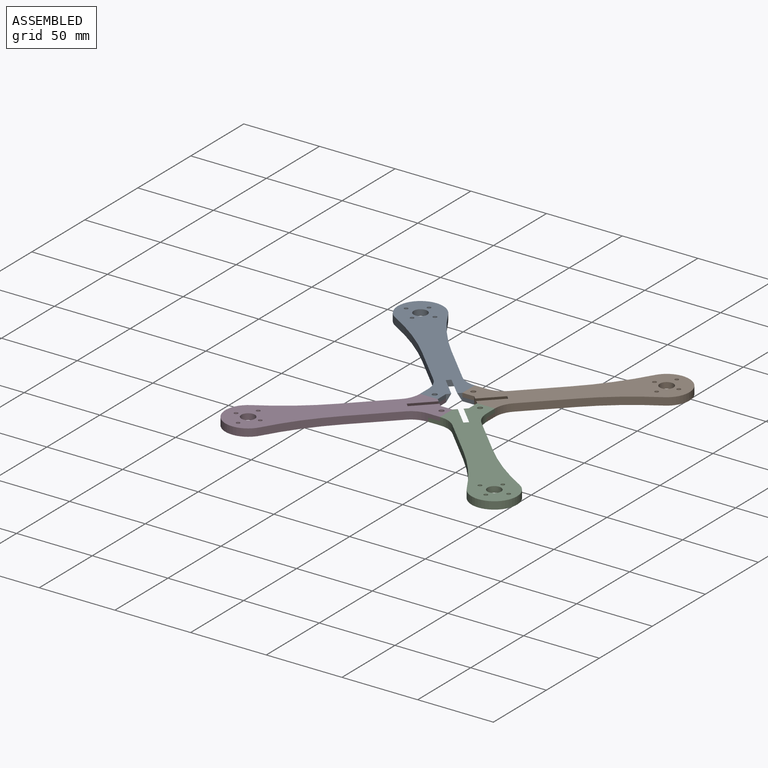
[diagram: assembled view]
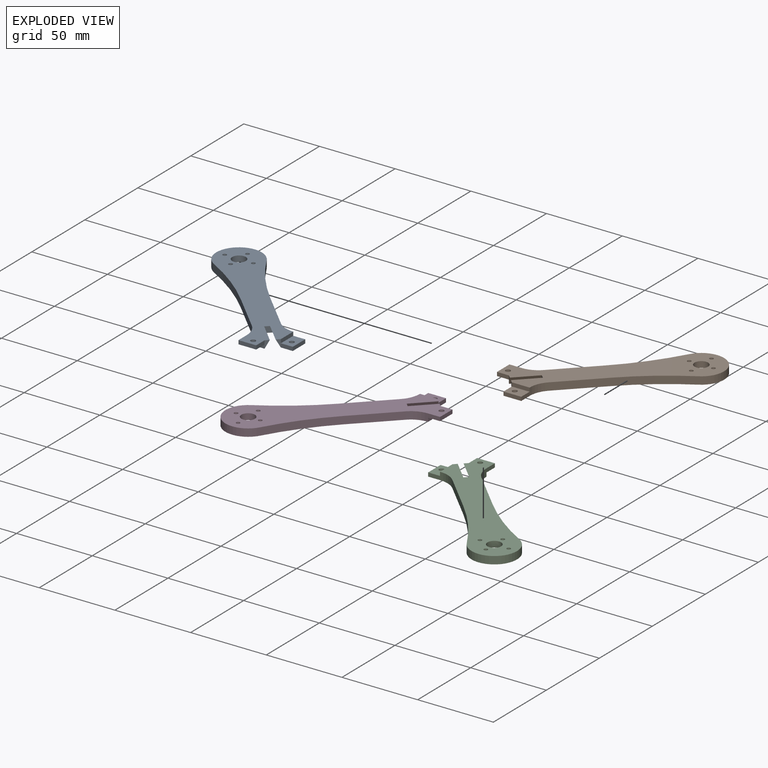
[diagram: exploded view]
GUIDED TOUR — MATED ASSEMBLY (Onshape document 2eba3f45fb6d1a88e2d78f5d, AutoMate assembly 2eba3f45fb6d1a88e2d78f5d_809696ebd83665a8b5884bc8_9922c67665e5621c019cb898_default)

This assembly has 4 components, labeled P0..P3 below (a component is one placed occurrence of a part; the same part can appear more than once), held together by 3 mates. A mate is a constraint between two components; its type names the relative motion it leaves free:
  FASTENED — locks the two components together rigidly (no relative motion).
Axis/direction vectors are unit vectors and 'through' points are millimeter coordinates, both in the assembly's world frame.

MATES
  1. FASTENED "Fastened 1": P3 <-> P2, direction (0.000, 0.000, -1.000) through (-0.24, -12.91, 0.00) mm
  2. FASTENED "Fastened 3": P0 <-> P1, direction (0.000, 0.000, 1.000) through (-0.24, 17.09, 0.00) mm
  3. FASTENED "Fastened 2": P1 <-> P2, direction (0.000, 0.000, 1.000) through (14.76, 2.09, 0.00) mm

ASSEMBLY ORDER
  1. P3 — the base component [order verified]
  2. P0 [order verified]
  3. P1 [order verified]
  4. P2 [order verified]
(P2 verified with a relaxed clearance tolerance: the source model stores slight part interference there.)
Order-tag legend:
  [order verified] — this step's position reverses a verified removal order: the component was checked to insert without passing through the ones already placed.

Of the 4 components, 4 carry the full construction recipe — the FeatureScript program that regenerates the part's solid from scratch; the rest are supplied as boundary geometry only.
Each toured component is shown spotlighted twice — in the assembled view, then in the exploded view, where a leader line traces a displaced component back to its assembled socket (saturated green if recipe-attached, orange if geometry-only; every other component desaturated gray) — followed by its recipe or geometry summary and the mates that hold it.
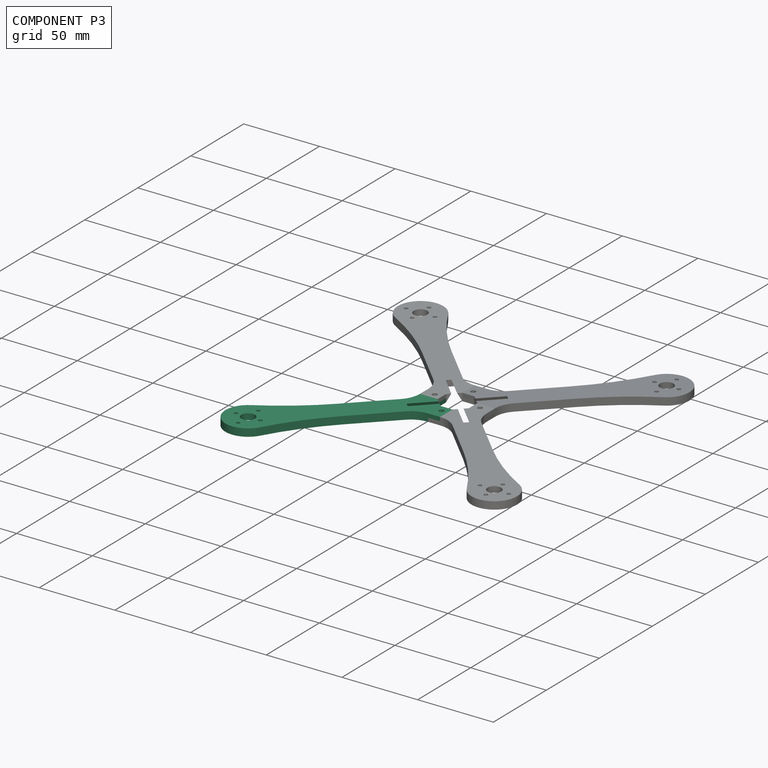
[diagram: component P3 — assembled]
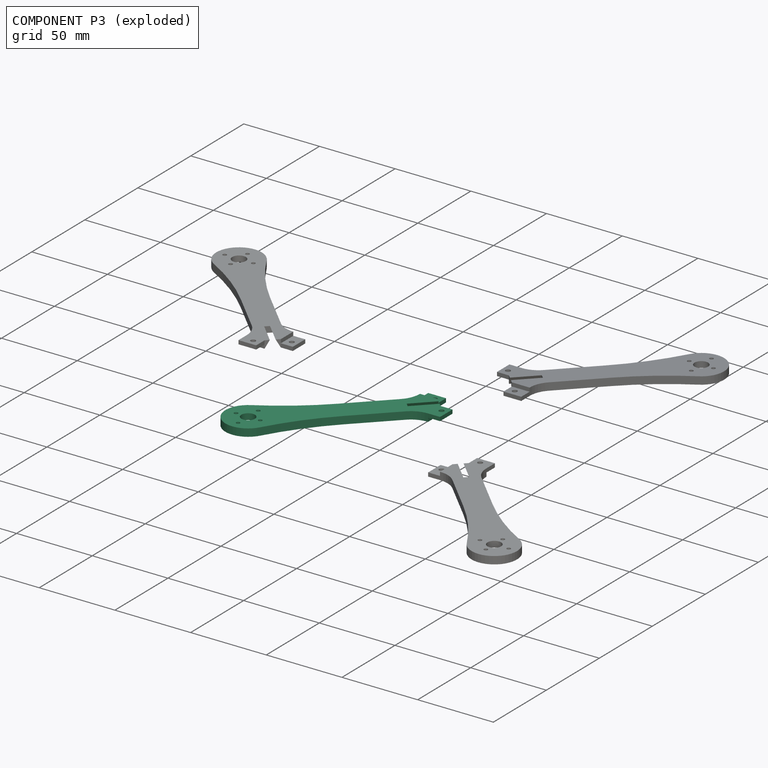
[diagram: component P3 — exploded]
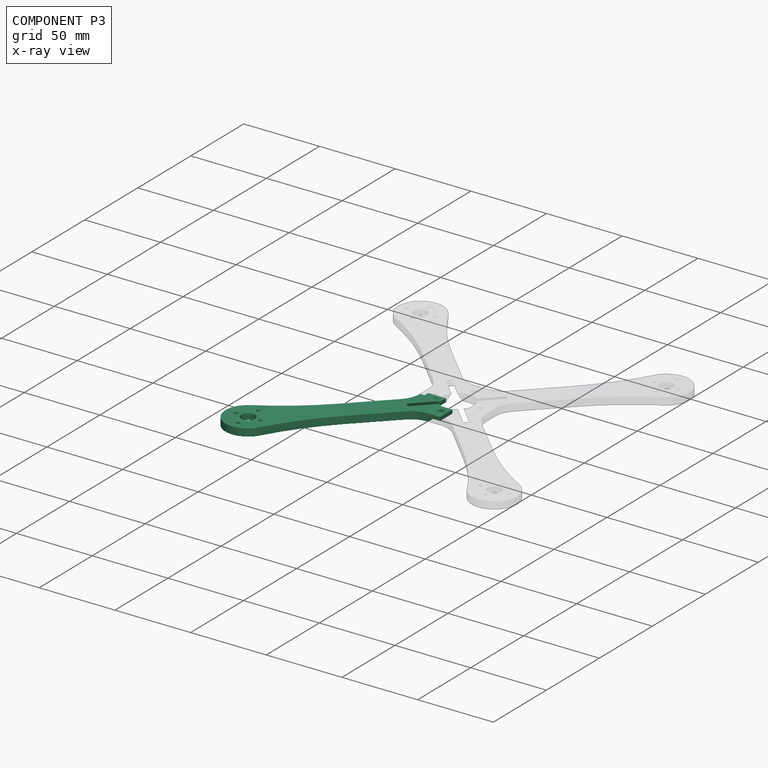
[diagram: component P3 — x-ray view]
COMPONENT P3 — same part as P0 (CADFS 00136629); its construction recipe is shown at P0.
Held by: FASTENED mate "Fastened 1" to P2.
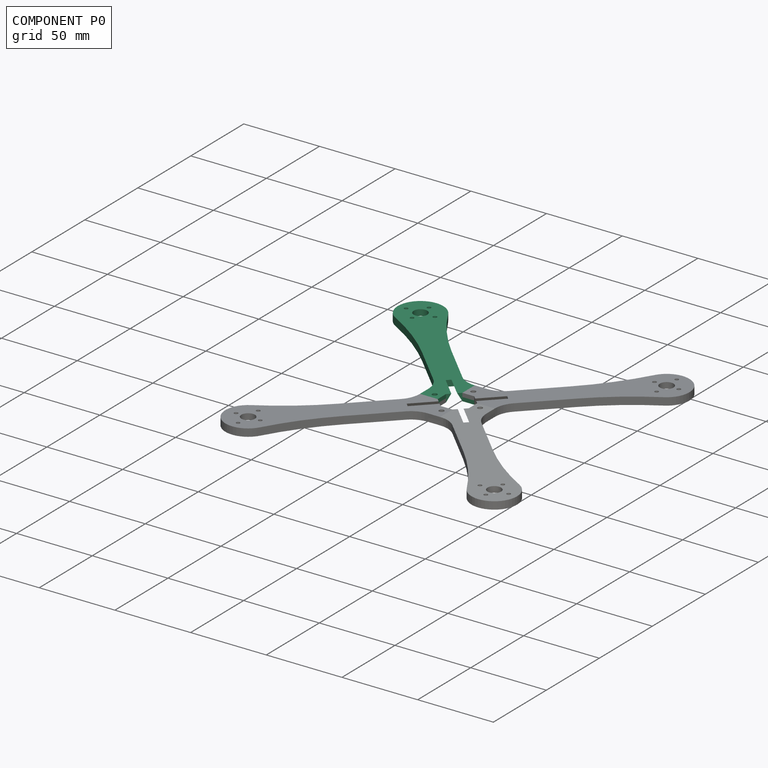
[diagram: component P0 — assembled]
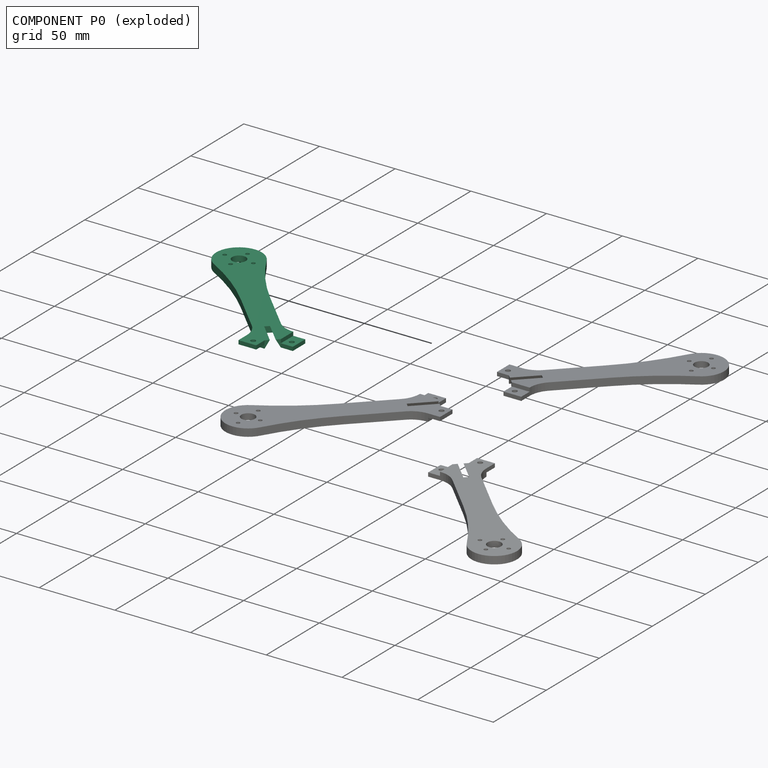
[diagram: component P0 — exploded]
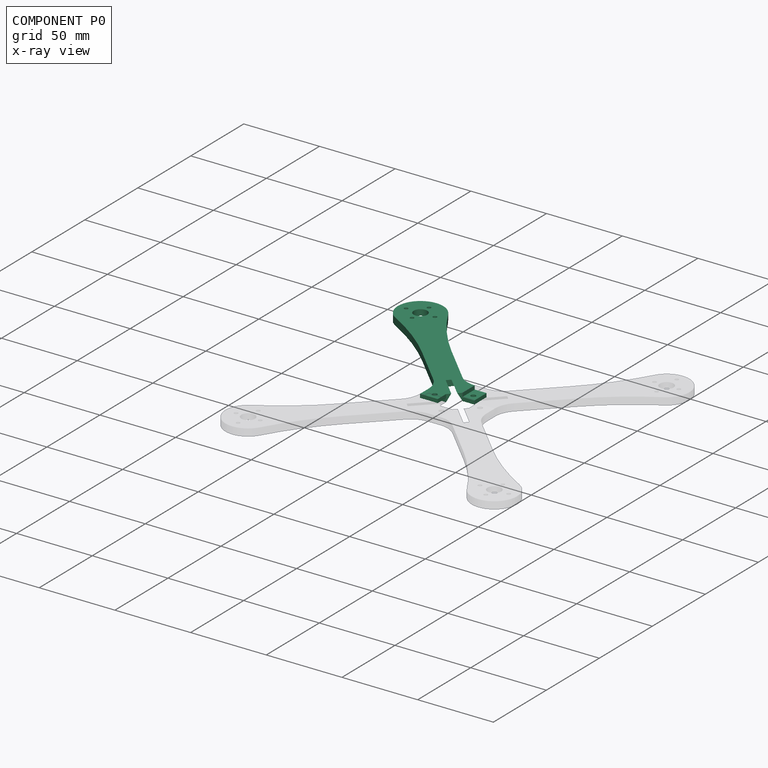
[diagram: component P0 — x-ray view]
COMPONENT P0 — recipe-attached (CADFS 00136629, mesh-verified: the recipe's output STEP matches this component's geometry to below the mesh-comparison resolution (tessellation chordal tolerance ~0.213 mm)).
Held by: FASTENED mate "Fastened 3" to P1.
Construction recipe (FeatureScript — the CAD program that rebuilds this solid; sketch coordinates are in the units given by the * unit suffixes, e.g. mm):

FeatureScript 1511;
import(path : "onshape/std/geometry.fs", version : "1511.0");
import(path : "onshape/std/common.fs", version : "1511.0");
const mm = millimeter;
const VERTEX = EntityType.VERTEX;
const EDGE = EntityType.EDGE;
const FACE = EntityType.FACE;
const BODY = EntityType.BODY;
function v(x, y){return vector(x, y);}
function OD(order){return orderDisambiguation(order);}
function OSD(set){return originalSetDisambiguation(set);}
function TD(topology){return topologyDisambiguation(topology);}
function TDD(query){return trueDependencyDisambiguation(query);}
function sQuery(a, b, c) {return sketchEntityQuery(a, b, c);}

annotation { "Feature Type Name" : "Feature", "Feature Type Description" : "" }
export const myFeature = defineFeature(function(context is Context, id is Id, definition is map)
    precondition{}
    {
        {
            var Q0;
            Q0=qCreatedBy(makeId("Top.planeOp"),FACE);
            var sketch = newSketch(context, id + "F0", { "sketchPlane" : qUnion([Q0])});
            skLineSegment(sketch, "E0.left", {"start": v(-22, 3.93) * mm, "end": v(-22, -4.06) * mm});
            skLineSegment(sketch, "E1.top", {"start": v(-18, -18) * mm, "end": v(3.93, -18) * mm, "construction": true});
            skLineSegment(sketch, "E1.left", {"start": v(-18, 3.93) * mm, "end": v(-18, -18) * mm, "construction": true});
            skCircle(sketch, "E2.MirrorC", {"center": v(-15, -15) * mm, "radius": 1.6 * mm, "construction": true});
            skCircle(sketch, "E3.MirrorC", {"center": v(-89.32, -81.32) * mm, "radius": 1.25 * mm});
            skCircle(sketch, "E4.MirrorC", {"center": v(-81.32, -71.82) * mm, "radius": 1.25 * mm});
            skCircle(sketch, "E5.MirrorC", {"center": v(-81.32, -90.82) * mm, "radius": 1.25 * mm});
            skCircle(sketch, "E6.MirrorC", {"center": v(-73.32, -81.32) * mm, "radius": 1.25 * mm});
            skCircle(sketch, "E7.MirrorC", {"center": v(-81.32, -81.32) * mm, "radius": 4.5 * mm});
            skCircle(sketch, "E8.MirrorC", {"center": v(-81.32, -81.32) * mm, "radius": 13.85 * mm, "construction": true});
            skArc(sketch, "E9.MirrorC", {"start": v(-66.69, -78) * mm, "mid": v(-91.92, -91.92) * mm, "end": v(-78, -66.69) * mm});
            skPoint(sketch, "E10", {"position": v(-22, 0) * mm});
            skPoint(sketch, "E11", {"position": v(0, -22) * mm});
            skLineSegment(sketch, "E12", {"start": v(-22, 0) * mm, "end": v(0, 0) * mm, "construction": true});
            skLineSegment(sketch, "E13", {"start": v(0, -22) * mm, "end": v(0, 0) * mm, "construction": true});
            skLineSegment(sketch, "E14.1", {"start": v(0.6, -5.56) * mm, "end": v(-0.6, -5.56) * mm, "construction": true});
            skLineSegment(sketch, "E15.trimOffspring", {"start": v(-3.93, -10.27) * mm, "end": v(-3.93, -22) * mm});
            skLineSegment(sketch, "E16.trimOffspring", {"start": v(-10.27, -3.93) * mm, "end": v(-22, -3.93) * mm});
            skCircle(sketch, "E17", {"center": v(-15, 0) * mm, "radius": 1.6 * mm});
            skCircle(sketch, "E18", {"center": v(0, -15) * mm, "radius": 1.6 * mm});
            skLineSegment(sketch, "E19", {"start": v(0, 0) * mm, "end": v(-70.71, -70.71) * mm, "construction": true});
            skLineSegment(sketch, "E20", {"start": v(-3.93, -8.88) * mm, "end": v(-0.6, -5.56) * mm, "construction": true});
            skLineSegment(sketch, "E21.trimOffspring", {"start": v(-5.56, -0.6) * mm, "end": v(-8.88, -3.93) * mm, "construction": true});
            skLineSegment(sketch, "E22", {"start": v(-26.69, -15.37) * mm, "end": v(-78, -66.69) * mm});
            skLineSegment(sketch, "E23", {"start": v(-66.69, -78) * mm, "end": v(-15.37, -26.69) * mm});
            skLineSegment(sketch, "E24", {"start": v(-23.41, -15.64) * mm, "end": v(-15.64, -23.41) * mm});
            skLineSegment(sketch, "E25.0", {"start": v(-68.35, -77.55) * mm, "end": v(-15.64, -24.83) * mm});
            skArc(sketch, "E25.1", {"start": v(-68.35, -77.55) * mm, "mid": v(-90.86, -90.86) * mm, "end": v(-77.55, -68.35) * mm});
            skLineSegment(sketch, "E25.2", {"start": v(-24.83, -15.64) * mm, "end": v(-77.55, -68.35) * mm});
            skLineSegment(sketch, "E26.trimOffspring", {"start": v(-4.06, -22) * mm, "end": v(3.93, -22) * mm});
            skPoint(sketch, "E27.visualSharp", {"position": v(-24.12, -14.93) * mm});
            skArc(sketch, "E27.filletArc", {"start": v(-23.41, -15.64) * mm, "mid": v(-24.12, -15.34) * mm, "end": v(-24.83, -15.64) * mm});
            skPoint(sketch, "E28.visualSharp", {"position": v(-14.93, -24.12) * mm});
            skArc(sketch, "E28.filletArc", {"start": v(-15.64, -24.83) * mm, "mid": v(-15.34, -24.12) * mm, "end": v(-15.64, -23.41) * mm});
            skPoint(sketch, "E29.visualSharp", {"position": v(-10.69, -22) * mm});
            skArc(sketch, "E29.filletArc", {"start": v(-4.06, -22) * mm, "mid": v(-10.18, -23.22) * mm, "end": v(-15.37, -26.69) * mm});
            skPoint(sketch, "E30.visualSharp", {"position": v(-22, -10.69) * mm});
            skArc(sketch, "E30.filletArc", {"start": v(-26.69, -15.37) * mm, "mid": v(-23.22, -10.18) * mm, "end": v(-22, -4.06) * mm});
            skLineSegment(sketch, "E31", {"start": v(-8.88, -3.93) * mm, "end": v(-3.93, -8.88) * mm, "construction": true});
            skLineSegment(sketch, "E32", {"start": v(-8.23, -5.97) * mm, "end": v(-20.66, -18.4) * mm});
            skLineSegment(sketch, "E33", {"start": v(-5.97, -8.23) * mm, "end": v(-18.4, -20.66) * mm});
            skLineSegment(sketch, "E34", {"start": v(0.6, -5.56) * mm, "end": v(3.93, -8.88) * mm, "construction": true});
            skLineSegment(sketch, "E35", {"start": v(-5.56, 0.6) * mm, "end": v(-8.88, 3.93) * mm, "construction": true});
            skLineSegment(sketch, "E36", {"start": v(-5.56, 0.6) * mm, "end": v(-5.56, -0.6) * mm, "construction": true});
            skLineSegment(sketch, "E37", {"start": v(-3.93, -8.88) * mm, "end": v(3.93, -8.88) * mm, "construction": true});
            skLineSegment(sketch, "E38", {"start": v(3.93, -22) * mm, "end": v(3.93, -10.27) * mm});
            skLineSegment(sketch, "E39", {"start": v(-8.88, -3.93) * mm, "end": v(-8.88, 3.93) * mm, "construction": true});
            skLineSegment(sketch, "E40", {"start": v(-22, 3.93) * mm, "end": v(-10.27, 3.93) * mm});
            skLineSegment(sketch, "E41", {"start": v(-8.88, 3.93) * mm, "end": v(-8.44, 3.93) * mm, "construction": true});
            skLineSegment(sketch, "E42", {"start": v(-8.44, 3.93) * mm, "end": v(-8.44, 2.53) * mm, "construction": true});
            skLineSegment(sketch, "E43", {"start": v(-8.44, 2.53) * mm, "end": v(-8.88, 2.53) * mm, "construction": true});
            skLineSegment(sketch, "E44", {"start": v(-8.88, 3.93) * mm, "end": v(-8.88, 4.28) * mm, "construction": true});
            skLineSegment(sketch, "E45", {"start": v(-8.88, 4.28) * mm, "end": v(-10.27, 4.28) * mm, "construction": true});
            skLineSegment(sketch, "E46", {"start": v(-10.27, 4.28) * mm, "end": v(-10.27, 3.93) * mm, "construction": true});
            skLineSegment(sketch, "E47", {"start": v(-8.88, 2.53) * mm, "end": v(-10.27, 3.93) * mm, "construction": true});
            skLineSegment(sketch, "E48", {"start": v(-10.27, 3.93) * mm, "end": v(-10.27, -3.93) * mm});
            skLineSegment(sketch, "E49", {"start": v(-10.27, -3.93) * mm, "end": v(-3.93, -10.27) * mm});
            skLineSegment(sketch, "E50", {"start": v(-3.93, -10.27) * mm, "end": v(3.93, -10.27) * mm});
            skLineSegment(sketch, "E51.trimOffspring", {"start": v(-8.88, 3.93) * mm, "end": v(-8.88, 3.93) * mm});
            skLineSegment(sketch, "E52.trimOffspring", {"start": v(3.93, -8.88) * mm, "end": v(3.93, -8.88) * mm});
            skLineSegment(sketch, "E53", {"start": v(-10.27, 3.93) * mm, "end": v(-8.88, 3.93) * mm, "construction": true});
            skLineSegment(sketch, "E54", {"start": v(-10.27, -3.93) * mm, "end": v(-8.88, -3.93) * mm, "construction": true});
            skLineSegment(sketch, "E55", {"start": v(-3.93, -8.88) * mm, "end": v(-3.93, -10.27) * mm, "construction": true});
            skLineSegment(sketch, "E56", {"start": v(3.93, -8.88) * mm, "end": v(3.93, -10.27) * mm, "construction": true});
            skPoint(sketch, "E57.orphan", {"position": v(-7.54, -5.27) * mm});
            skLineSegment(sketch, "E58", {"start": v(-8.23, -5.97) * mm, "end": v(-7.54, -5.27) * mm, "construction": true});
            skLineSegment(sketch, "E59", {"start": v(-5.97, -8.23) * mm, "end": v(-5.27, -7.54) * mm, "construction": true});
            skSolve(sketch);
        }
        {
            var Q0;
            {var subQ0=sQuery(id+"F0.wireOp",EDGE,"E16.trimOffspring");var subQ1=sQuery(id+"F0.wireOp",EDGE,"E0.left");var subQ2=makeQuery(id+"F0.imprint","INTERSECT",VERTEX,{"derivedFrom":[subQ1,subQ0]});Q0=makeQuery(id+"F0.imprint","IMPRINT",FACE,{"disambiguationData":[TD([[makeQuery(id+"F0.imprint","IMPRINT",EDGE,{"disambiguationData":[TD([[subQ2,-1.0]])],"derivedFrom":subQ1}),1.0]])]});}
            var Q1;
            Q1=makeQuery(id+"F0.imprint","IMPRINT",FACE,{"disambiguationData":[TD([[makeQuery(id+"F0.imprint","IMPRINT",EDGE,{"derivedFrom":sQuery(id+"F0.wireOp",EDGE,"E9.MirrorC")}),-1.0]])]});
            var Q2;
            {var subQ1=sQuery(id+"F0.wireOp",EDGE,"E0.top");var subQ5=makeQuery(id+"F0.imprint","INTERSECT",VERTEX,{"derivedFrom":[subQ1,sQuery(id+"F0.wireOp",EDGE,"E23")]});Q2=makeQuery(id+"F0.imprint","IMPRINT",FACE,{"disambiguationData":[TD([[makeQuery(id+"F0.imprint","IMPRINT",EDGE,{"disambiguationData":[TD([[subQ5,1.0]])],"derivedFrom":subQ1}),1.0]])]});}
            var Q3;
            Q3=makeQuery(id+"F0.imprint","IMPRINT",FACE,{"disambiguationData":[TD([[makeQuery(id+"F0.imprint","IMPRINT",EDGE,{"derivedFrom":sQuery(id+"F0.wireOp",EDGE,"E3.MirrorC")}),-1.0]])]});
            extrude(context, id + "F1", {"entities" : qUnion([Q0, Q1, Q2, Q3]), "depth" : 5 * mm});
        }
        {
            var Q0;
            {var subQ0=sQuery(id+"F0.wireOp",EDGE,"E16.trimOffspring");Q0=makeQuery(id+"F0.imprint","IMPRINT",FACE,{"disambiguationData":[TD([[makeQuery(id+"F0.imprint","IMPRINT",EDGE,{"derivedFrom":subQ0}),-1.0]])]});}
            extrude(context, id + "F2", {"entities" : qUnion([Q0]), "operationType" : NewBodyOperationType.ADD, "depth" : 2.5 * mm});
        }
        {
            var Q0;
            {var subQ2=sQuery(id+"F0.wireOp",EDGE,"E15.trimOffspring");Q0=makeQuery(id+"F0.imprint","IMPRINT",FACE,{"disambiguationData":[TD([[makeQuery(id+"F0.imprint","IMPRINT",EDGE,{"derivedFrom":subQ2}),1.0]])]});}
            extrude(context, id + "F3", {"entities" : qUnion([Q0]), "operationType" : NewBodyOperationType.ADD, "depth" : 5 * mm});
        }
        {
            var Q0;
            {var subQ2=sQuery(id+"F0.wireOp",EDGE,"E15.trimOffspring");Q0=makeQuery(id+"F0.imprint","IMPRINT",FACE,{"disambiguationData":[TD([[makeQuery(id+"F0.imprint","IMPRINT",EDGE,{"derivedFrom":subQ2}),1.0]])]});}
            extrude(context, id + "F4", {"entities" : qUnion([Q0]), "operationType" : NewBodyOperationType.REMOVE, "depth" : 2.5 * mm});
        }
        {
            var Q0;
            Q0=makeQuery(id+"F0.imprint","IMPRINT",FACE,{"disambiguationData":[TD([[makeQuery(id+"F0.imprint","IMPRINT",EDGE,{"derivedFrom":sQuery(id+"F0.wireOp",EDGE,"E3.MirrorC")}),-1.0]])]});
            var Q1;
            {var subQ3=sQuery(id+"F0.wireOp",EDGE,"E24");Q1=makeQuery(id+"F0.imprint","IMPRINT",FACE,{"disambiguationData":[TD([[makeQuery(id+"F0.imprint","IMPRINT",EDGE,{"derivedFrom":subQ3}),-1.0]])]});}
            extrude(context, id + "F5", {"entities" : qUnion([Q0, Q1]), "operationType" : NewBodyOperationType.REMOVE, "depth" : 1 * mm});
        }
        {
            var Q0;
            Q0=makeQuery(id+"F1.opExtrude","SWEPT_EDGE",EDGE,{"disambiguationData":[OSD([sQuery(id+"F0.wireOp",EDGE,"E9.MirrorC"),sQuery(id+"F0.wireOp",EDGE,"E23")])]});
            var Q1;
            Q1=makeQuery(id+"F1.opExtrude","SWEPT_EDGE",EDGE,{"disambiguationData":[OSD([sQuery(id+"F0.wireOp",EDGE,"E9.MirrorC"),sQuery(id+"F0.wireOp",EDGE,"E22")])]});
            fillet(context, id + "F6", {"entities" : qUnion([Q0, Q1]), "radius" : 175 * mm, "tangentPropagation" : true, "allowEdgeOverflow" : false});
        }
        {
            var Q0;
            Q0=makeQuery(id+"F1.opExtrude","SWEPT_FACE",FACE,{"disambiguationData":[OSD([sQuery(id+"F0.wireOp",EDGE,"E24")])]});
            var sketch = newSketch(context, id + "F7", { "sketchPlane" : qUnion([Q0])});
            skLineSegment(sketch, "E60", {"start": v(1.6, 5) * mm, "end": v(4.49, 0) * mm});
            skLineSegment(sketch, "E61", {"start": v(-1.6, 5) * mm, "end": v(-4.49, 0) * mm});
            skLineSegment(sketch, "E62", {"start": v(-4.49, 0) * mm, "end": v(4.49, 0) * mm});
            skLineSegment(sketch, "E63", {"start": v(-1.6, 5) * mm, "end": v(1.6, 5) * mm});
            skSolve(sketch);
        }
        {
            var Q0;
            Q0=makeQuery(id+"F7.imprint","IMPRINT",FACE,{"disambiguationData":[TD([[makeQuery(id+"F7.imprint","IMPRINT",EDGE,{"derivedFrom":sQuery(id+"F7.wireOp",EDGE,"E60")}),-1.0]])]});
            extrude(context, id + "F8", {"entities" : qUnion([Q0]), "operationType" : NewBodyOperationType.REMOVE, "depth" : 25 * mm});
        }
    });
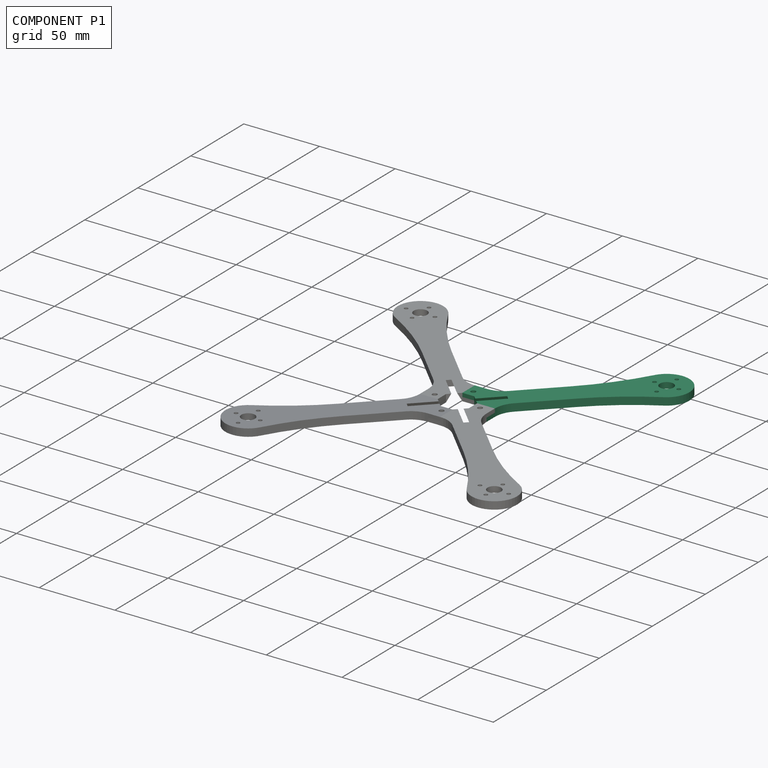
[diagram: component P1 — assembled]
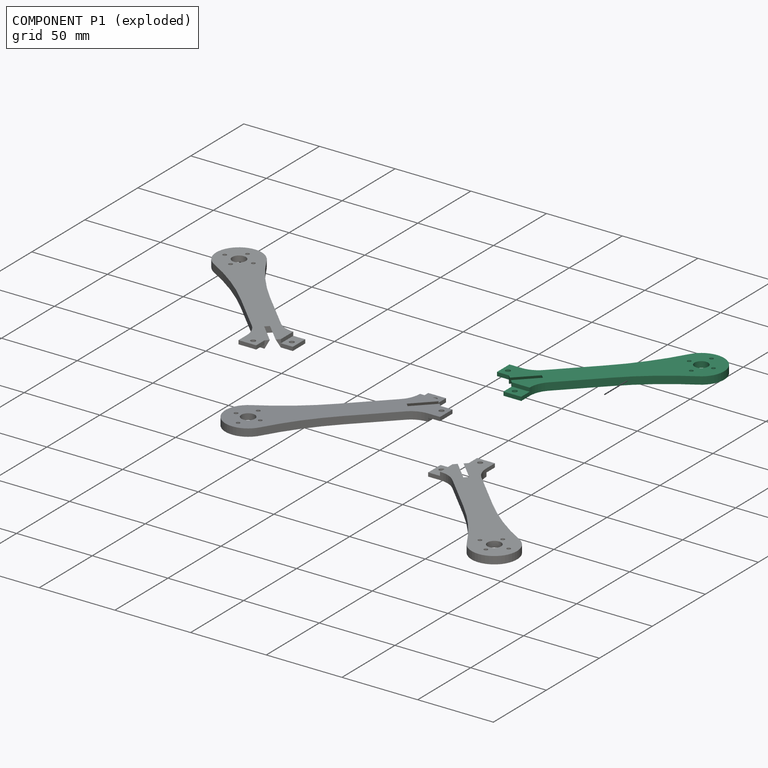
[diagram: component P1 — exploded]
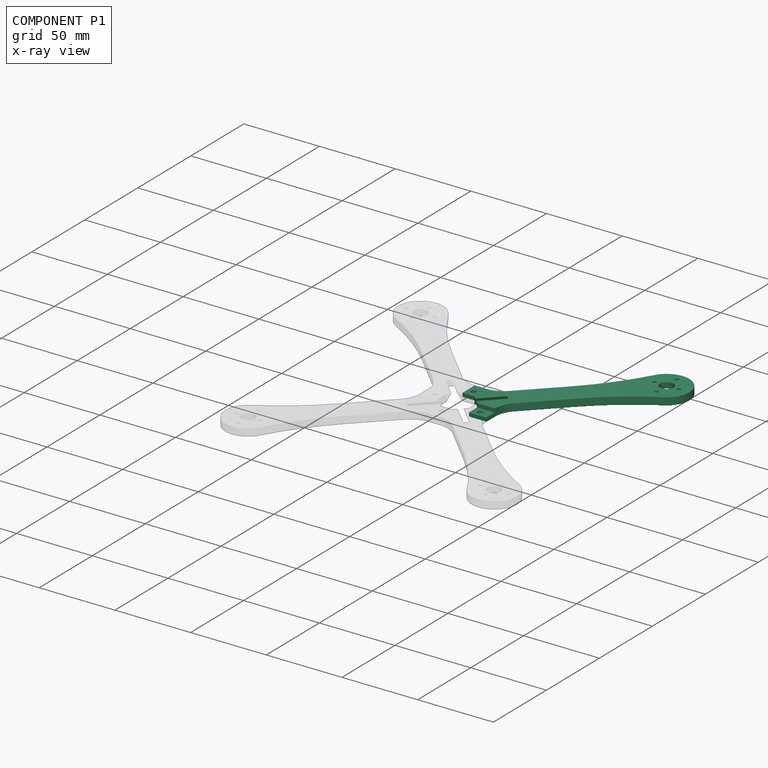
[diagram: component P1 — x-ray view]
COMPONENT P1 — same part as P0 (CADFS 00136629); its construction recipe is shown at P0.
Held by: FASTENED mate "Fastened 3" to P0; FASTENED mate "Fastened 2" to P2.
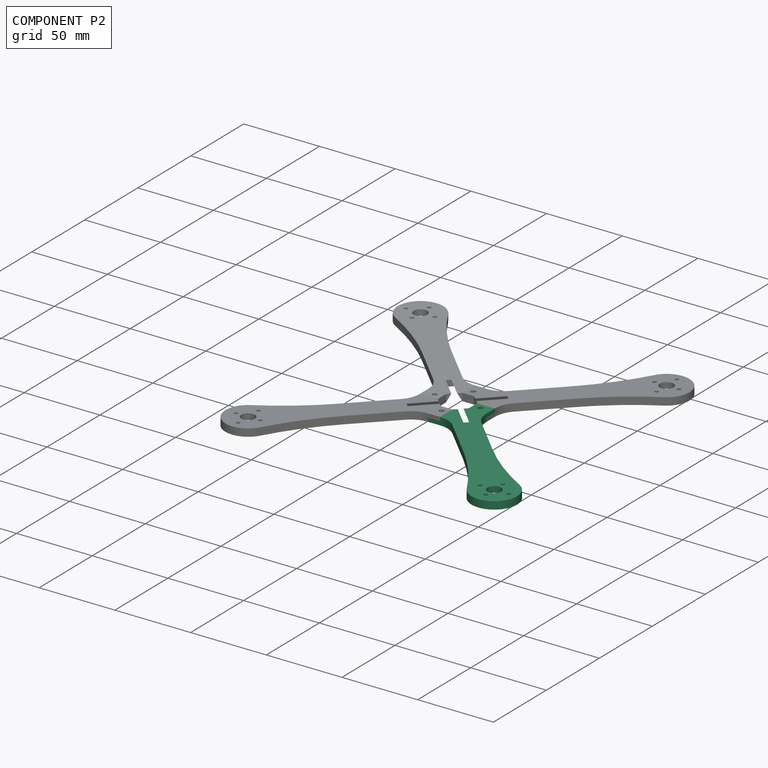
[diagram: component P2 — assembled]
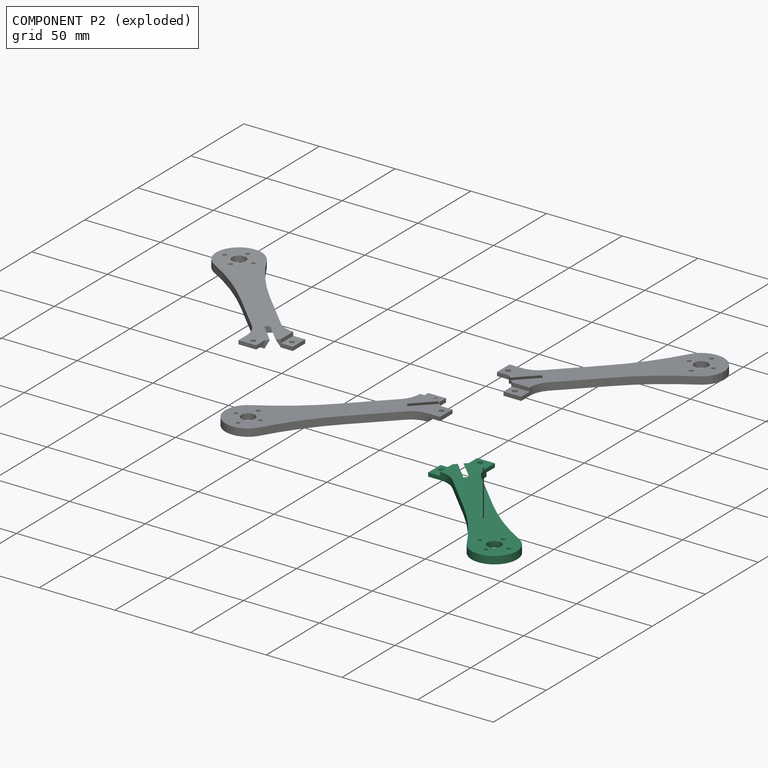
[diagram: component P2 — exploded]
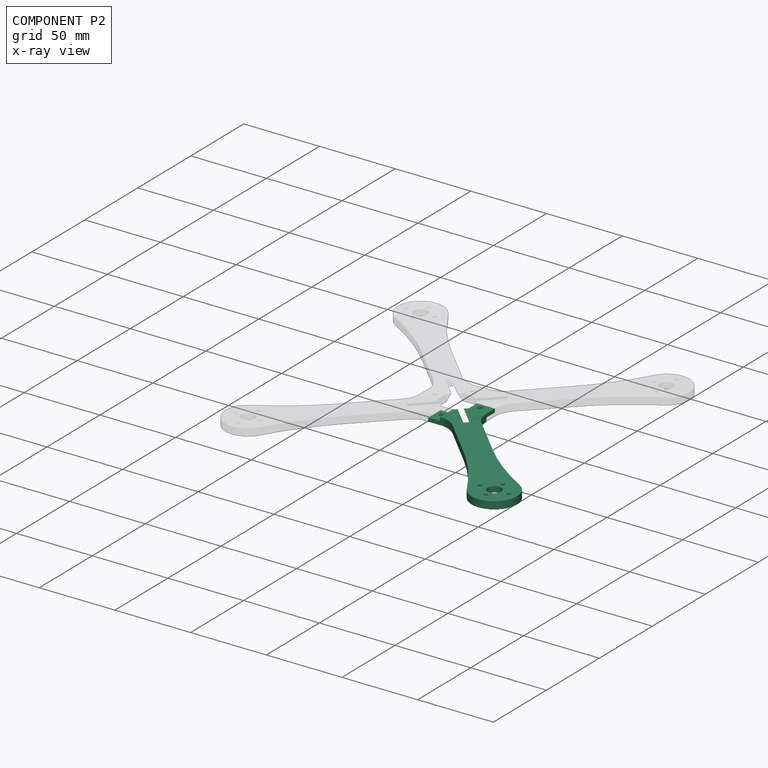
[diagram: component P2 — x-ray view]
COMPONENT P2 — same part as P0 (CADFS 00136629); its construction recipe is shown at P0.
Held by: FASTENED mate "Fastened 1" to P3; FASTENED mate "Fastened 2" to P1.
PROVENANCE & LICENSES
Assembly (occurrences, transforms, mates, per-part STEP geometry): AutoMate dataset, Zenodo record 7776208, CC0.
Construction recipes: CADFS (HuggingFace VladPyatov/CADFS, CC-BY-4.0, layered over the ABC dataset), FeatureScript reconstruction programs keyed by ABC model id.
Join: ABC meta listings map ABC model id -> Onshape documentId; within a shared document, parts are matched by geometric signature (bounding-box dims + volume at 0.1% relative tolerance, exact B-rep face/solid counts).
Verification: 4 of this assembly's 4 components carry a recipe attachment, and every attachment is mesh-verified: the CADFS STEP and the AutoMate member STEP were compared as meshes in their shared local frame (symmetric sampled-point-to-mesh distance); worst across the 4 attachments: below the mesh-comparison resolution (tessellation chordal tolerance ~0.213 mm) on a 142 mm part.
Renders: orthographic iso camera (az 35 / el 25); the floor grid conveys scale (grid pitch printed in each image; no ruler). In the exploded view each component is displaced by its stored offset vector: the offsets alone carry the explosion direction (mate normal/axis signs are not orientation cues and do not encode it), and separation distances are assigned per mate-chain, not proportionally to assembly-order depth.
